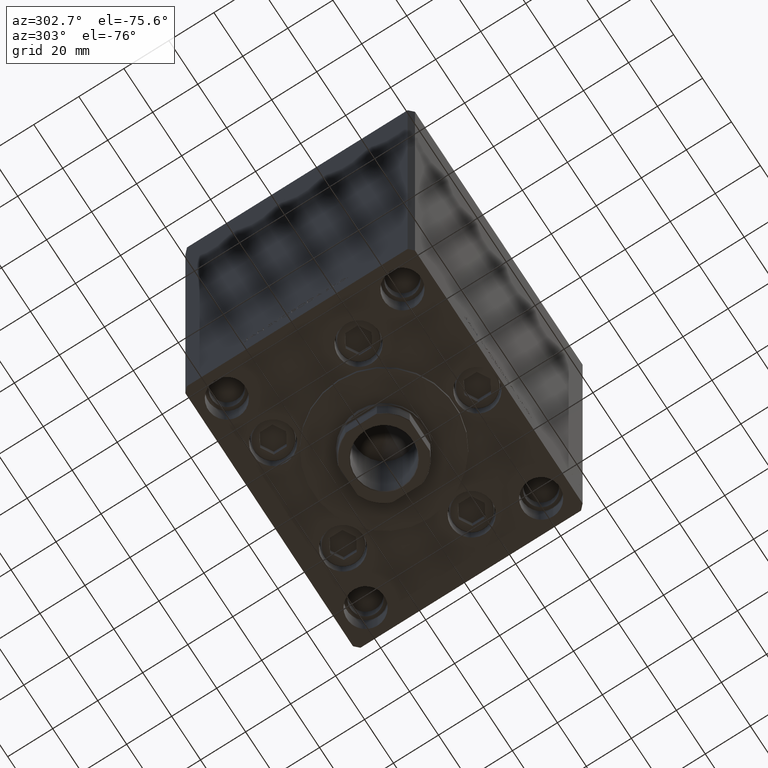
[diagram: clean part render]
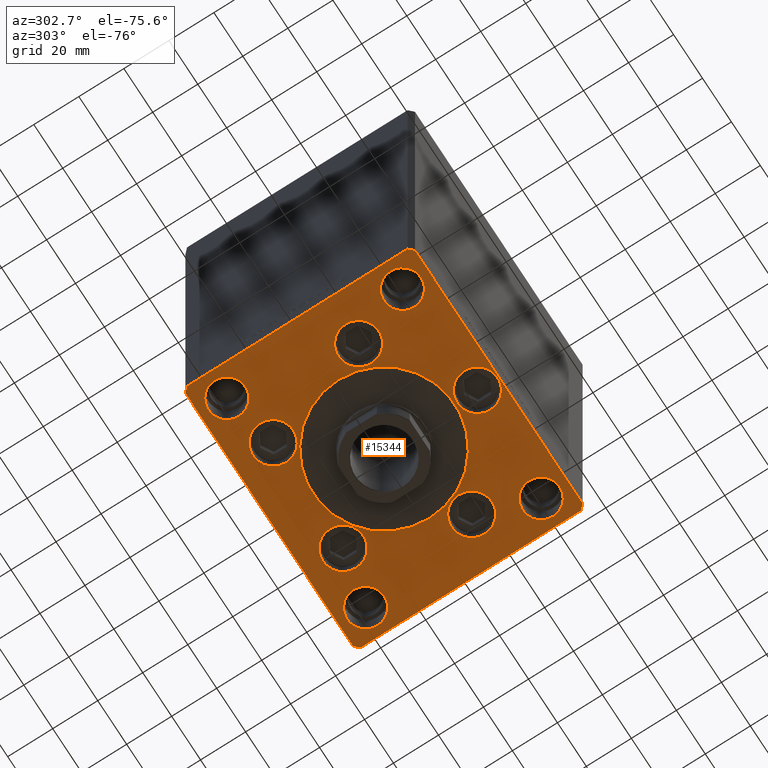
[diagram: same view with one face highlighted and labeled with its STEP entity id]
A machine part, auxiliary view. The second image highlights one B-rep face of the part: STEP entity #15344.
In plain terms, the highlighted planar face has unit normal (0, 0, -1).
Its self-contained STEP definition (entity closure, byte-faithful):
#146 = DIRECTION ( 'NONE',  ( 0.000000000000000000, 0.000000000000000000, 1.000000000000000000 ) ) ;
#362 = AXIS2_PLACEMENT_3D ( 'NONE', #9922, #32775, #3177 ) ;
#372 = CARTESIAN_POINT ( 'NONE',  ( 58.00000000000000000, 51.00000000000000711, 0.000000000000000000 ) ) ;
#555 = VERTEX_POINT ( 'NONE', #31207 ) ;
#558 = DIRECTION ( 'NONE',  ( 0.7071067811865474617, -0.7071067811865474617, 0.000000000000000000 ) ) ;
#609 = EDGE_LOOP ( 'NONE', ( #5217, #40848, #5569, #21369, #32803, #37626, #30897, #43867 ) ) ;
#1147 = CIRCLE ( 'NONE', #362, 9.000000000000000000 ) ;
#1271 = AXIS2_PLACEMENT_3D ( 'NONE', #23043, #26532, #38190 ) ;
#1336 = CARTESIAN_POINT ( 'NONE',  ( -60.00000000000000000, 49.00000000000000000, 0.000000000000000000 ) ) ;
#2244 = CARTESIAN_POINT ( 'NONE',  ( 60.00000000000001421, 49.00000000000002842, 0.000000000000000000 ) ) ;
#2248 = CARTESIAN_POINT ( 'NONE',  ( 24.19288941894913592, 33.71874999999998579, 0.000000000000000000 ) ) ;
#2297 = CARTESIAN_POINT ( 'NONE',  ( 56.24999999999999289, 39.00000000000000000, 0.000000000000000000 ) ) ;
#2342 = ORIENTED_EDGE ( 'NONE', *, *, #48947, .F. ) ;
#2444 = AXIS2_PLACEMENT_3D ( 'NONE', #2248, #21880, #18150 ) ;
#2614 = CIRCLE ( 'NONE', #39934, 8.249999999999992895 ) ;
#2862 = ORIENTED_EDGE ( 'NONE', *, *, #21265, .F. ) ;
#3177 = DIRECTION ( 'NONE',  ( 1.000000000000000000, 0.000000000000000000, 0.000000000000000000 ) ) ;
#3457 = VERTEX_POINT ( 'NONE', #14523 ) ;
#3471 = FACE_OUTER_BOUND ( 'NONE', #609, .T. ) ;
#3741 = DIRECTION ( 'NONE',  ( 0.000000000000000000, 0.000000000000000000, 1.000000000000000000 ) ) ;
#3934 = DIRECTION ( 'NONE',  ( 0.000000000000000000, 0.000000000000000000, 1.000000000000000000 ) ) ;
#3970 = FACE_BOUND ( 'NONE', #34110, .T. ) ;
#4025 = CARTESIAN_POINT ( 'NONE',  ( 39.12657522565563539, -13.83333333333332860, 0.000000000000000000 ) ) ;
#4414 = LINE ( 'NONE', #46408, #30144 ) ;
#4479 = CIRCLE ( 'NONE', #1271, 8.249999999999992895 ) ;
#5082 = EDGE_CURVE ( 'NONE', #43171, #555, #4414, .T. ) ;
#5217 = ORIENTED_EDGE ( 'NONE', *, *, #35470, .T. ) ;
#5569 = ORIENTED_EDGE ( 'NONE', *, *, #5758, .T. ) ;
#5758 = EDGE_CURVE ( 'NONE', #555, #22989, #15992, .T. ) ;
#5885 = VECTOR ( 'NONE', #46820, 1000.000000000000000 ) ;
#6061 = VERTEX_POINT ( 'NONE', #16851 ) ;
#6196 = EDGE_CURVE ( 'NONE', #17822, #37264, #34941, .T. ) ;
#6309 = DIRECTION ( 'NONE',  ( 1.000000000000000000, 0.000000000000000000, 0.000000000000000000 ) ) ;
#6341 = CARTESIAN_POINT ( 'NONE',  ( -48.00000000000000000, -39.00000000000001421, 0.000000000000000000 ) ) ;
#6381 = EDGE_LOOP ( 'NONE', ( #19022, #29788 ) ) ;
#6696 = CIRCLE ( 'NONE', #15425, 8.249999999999992895 ) ;
#7118 = EDGE_CURVE ( 'NONE', #24486, #8840, #7197, .T. ) ;
#7197 = CIRCLE ( 'NONE', #38165, 9.000000000000000000 ) ;
#7218 = FACE_BOUND ( 'NONE', #6381, .T. ) ;
#7277 = DIRECTION ( 'NONE',  ( 0.000000000000000000, 0.000000000000000000, 1.000000000000000000 ) ) ;
#7301 = CARTESIAN_POINT ( 'NONE',  ( 60.00000000000001421, -48.99999999999992895, 0.000000000000000000 ) ) ;
#7705 = ORIENTED_EDGE ( 'NONE', *, *, #28835, .F. ) ;
#7764 = EDGE_CURVE ( 'NONE', #33562, #3457, #32595, .T. ) ;
#7885 = DIRECTION ( 'NONE',  ( 1.000000000000000000, 0.000000000000000000, 0.000000000000000000 ) ) ;
#8044 = ORIENTED_EDGE ( 'NONE', *, *, #21135, .F. ) ;
#8183 = CARTESIAN_POINT ( 'NONE',  ( -39.12657522565563539, -13.83333333333332860, 0.000000000000000000 ) ) ;
#8242 = ORIENTED_EDGE ( 'NONE', *, *, #44125, .F. ) ;
#8301 = EDGE_CURVE ( 'NONE', #3457, #33562, #27085, .T. ) ;
#8353 = DIRECTION ( 'NONE',  ( 1.000000000000000000, 0.000000000000000000, 0.000000000000000000 ) ) ;
#8462 = DIRECTION ( 'NONE',  ( 1.000000000000000000, 0.000000000000000000, 0.000000000000000000 ) ) ;
#8819 = VERTEX_POINT ( 'NONE', #41983 ) ;
#8833 = CARTESIAN_POINT ( 'NONE',  ( -58.00000000000000711, -51.00000000000002842, 0.000000000000000000 ) ) ;
#8840 = VERTEX_POINT ( 'NONE', #19377 ) ;
#8930 = EDGE_LOOP ( 'NONE', ( #35722, #16639 ) ) ;
#8931 = DIRECTION ( 'NONE',  ( 1.000000000000000000, 0.000000000000000000, 0.000000000000000000 ) ) ;
#8970 = VERTEX_POINT ( 'NONE', #39470 ) ;
#9293 = DIRECTION ( 'NONE',  ( 0.000000000000000000, 0.000000000000000000, 1.000000000000000000 ) ) ;
#9371 = VERTEX_POINT ( 'NONE', #44842 ) ;
#9577 = LINE ( 'NONE', #13550, #32433 ) ;
#9601 = EDGE_CURVE ( 'NONE', #39922, #11554, #35038, .T. ) ;
#9922 = CARTESIAN_POINT ( 'NONE',  ( 0.000000000000000000, -41.50000000000000000, 0.000000000000000000 ) ) ;
#10938 = FACE_BOUND ( 'NONE', #44090, .T. ) ;
#11147 = VERTEX_POINT ( 'NONE', #29878 ) ;
#11184 = PLANE ( 'NONE',  #24119 ) ;
#11459 = EDGE_LOOP ( 'NONE', ( #44076, #37766 ) ) ;
#11554 = VERTEX_POINT ( 'NONE', #12399 ) ;
#11600 = DIRECTION ( 'NONE',  ( 0.000000000000000000, 0.000000000000000000, 1.000000000000000000 ) ) ;
#12399 = CARTESIAN_POINT ( 'NONE',  ( 31.50000000000000000, -3.081256486593065689E-15, 0.000000000000000000 ) ) ;
#12560 = CARTESIAN_POINT ( 'NONE',  ( -39.75000000000000711, -39.00000000000001421, 0.000000000000000000 ) ) ;
#12615 = EDGE_CURVE ( 'NONE', #22661, #9371, #2614, .T. ) ;
#12673 = CARTESIAN_POINT ( 'NONE',  ( 48.00000000000000000, -39.00000000000001421, 0.000000000000000000 ) ) ;
#12981 = CARTESIAN_POINT ( 'NONE',  ( -48.12657522565563539, -13.83333333333332682, 0.000000000000000000 ) ) ;
#13386 = CIRCLE ( 'NONE', #37986, 9.000000000000000000 ) ;
#13410 = DIRECTION ( 'NONE',  ( 0.000000000000000000, 0.000000000000000000, 1.000000000000000000 ) ) ;
#13550 = CARTESIAN_POINT ( 'NONE',  ( -57.99999999999998579, 50.99999999999997868, 0.000000000000000000 ) ) ;
#13730 = VERTEX_POINT ( 'NONE', #43020 ) ;
#14065 = CIRCLE ( 'NONE', #37067, 8.249999999999992895 ) ;
#14523 = CARTESIAN_POINT ( 'NONE',  ( 33.19288941894913592, 33.71874999999998579, 0.000000000000000000 ) ) ;
#14653 = ORIENTED_EDGE ( 'NONE', *, *, #23253, .F. ) ;
#14814 = CIRCLE ( 'NONE', #42582, 8.249999999999992895 ) ;
#14929 = DIRECTION ( 'NONE',  ( -0.000000000000000000, 0.000000000000000000, 1.000000000000000000 ) ) ;
#14970 = CARTESIAN_POINT ( 'NONE',  ( 30.12657522565563539, -13.83333333333332682, 0.000000000000000000 ) ) ;
#15173 = FACE_BOUND ( 'NONE', #8930, .T. ) ;
#15199 = CARTESIAN_POINT ( 'NONE',  ( 0.000000000000000000, -6.938893903907228378E-15, 0.000000000000000000 ) ) ;
#15344 = ADVANCED_FACE ( 'NONE', ( #10938, #30566, #22873, #48953, #41250, #15173, #3970, #7218, #30074, #22383, #3471 ), #11184, .T. ) ;
#15425 = AXIS2_PLACEMENT_3D ( 'NONE', #24749, #20027, #24248 ) ;
#15727 = DIRECTION ( 'NONE',  ( 1.000000000000000000, 0.000000000000000000, 0.000000000000000000 ) ) ;
#15816 = EDGE_CURVE ( 'NONE', #8819, #26010, #20239, .T. ) ;
#15889 = DIRECTION ( 'NONE',  ( 1.000000000000000000, 0.000000000000000000, 0.000000000000000000 ) ) ;
#15992 = LINE ( 'NONE', #35339, #34115 ) ;
#16242 = AXIS2_PLACEMENT_3D ( 'NONE', #42725, #13410, #8931 ) ;
#16389 = VERTEX_POINT ( 'NONE', #21169 ) ;
#16639 = ORIENTED_EDGE ( 'NONE', *, *, #48517, .F. ) ;
#16713 = CARTESIAN_POINT ( 'NONE',  ( 58.00000000000000000, 51.00000000000000711, 0.000000000000000000 ) ) ;
#16851 = CARTESIAN_POINT ( 'NONE',  ( 39.75000000000000711, -39.00000000000001421, 0.000000000000000000 ) ) ;
#17039 = DIRECTION ( 'NONE',  ( 0.000000000000000000, 0.000000000000000000, 1.000000000000000000 ) ) ;
#17231 = DIRECTION ( 'NONE',  ( 0.000000000000000000, 0.000000000000000000, 1.000000000000000000 ) ) ;
#17287 = DIRECTION ( 'NONE',  ( -0.7071067811865536790, -0.7071067811865414665, 0.000000000000000000 ) ) ;
#17367 = CARTESIAN_POINT ( 'NONE',  ( -60.00000000000000000, -49.00000000000004263, 0.000000000000000000 ) ) ;
#17822 = VERTEX_POINT ( 'NONE', #18309 ) ;
#18150 = DIRECTION ( 'NONE',  ( 1.000000000000000000, 0.000000000000000000, 0.000000000000000000 ) ) ;
#18309 = CARTESIAN_POINT ( 'NONE',  ( -15.19288941894913592, 33.71874999999998579, 0.000000000000000000 ) ) ;
#18667 = DIRECTION ( 'NONE',  ( 1.000000000000000000, 0.000000000000000000, 0.000000000000000000 ) ) ;
#18686 = CARTESIAN_POINT ( 'NONE',  ( 15.19288941894913236, 33.71874999999998579, 0.000000000000000000 ) ) ;
#18787 = VERTEX_POINT ( 'NONE', #12981 ) ;
#18807 = VECTOR ( 'NONE', #558, 1000.000000000000114 ) ;
#19016 = AXIS2_PLACEMENT_3D ( 'NONE', #27808, #32262, #24076 ) ;
#19022 = ORIENTED_EDGE ( 'NONE', *, *, #26171, .F. ) ;
#19377 = CARTESIAN_POINT ( 'NONE',  ( -9.000000000000000000, -41.50000000000000000, 0.000000000000000000 ) ) ;
#19451 = EDGE_CURVE ( 'NONE', #16389, #25731, #6696, .T. ) ;
#20027 = DIRECTION ( 'NONE',  ( 0.000000000000000000, 0.000000000000000000, 1.000000000000000000 ) ) ;
#20239 = LINE ( 'NONE', #1336, #5885 ) ;
#20459 = AXIS2_PLACEMENT_3D ( 'NONE', #46243, #35061, #31823 ) ;
#20616 = VECTOR ( 'NONE', #32696, 1000.000000000000000 ) ;
#20961 = CARTESIAN_POINT ( 'NONE',  ( -39.12657522565563539, -13.83333333333332860, 0.000000000000000000 ) ) ;
#21135 = EDGE_CURVE ( 'NONE', #11147, #42077, #48751, .T. ) ;
#21169 = CARTESIAN_POINT ( 'NONE',  ( 39.75000000000000711, 39.00000000000000000, 0.000000000000000000 ) ) ;
#21265 = EDGE_CURVE ( 'NONE', #8840, #24486, #1147, .T. ) ;
#21369 = ORIENTED_EDGE ( 'NONE', *, *, #46327, .T. ) ;
#21694 = VERTEX_POINT ( 'NONE', #372 ) ;
#21842 = EDGE_LOOP ( 'NONE', ( #24807, #8242 ) ) ;
#21880 = DIRECTION ( 'NONE',  ( 0.000000000000000000, 0.000000000000000000, 1.000000000000000000 ) ) ;
#22383 = FACE_BOUND ( 'NONE', #49168, .T. ) ;
#22470 = EDGE_LOOP ( 'NONE', ( #44718, #31667 ) ) ;
#22661 = VERTEX_POINT ( 'NONE', #12560 ) ;
#22873 = FACE_BOUND ( 'NONE', #11459, .T. ) ;
#22989 = VERTEX_POINT ( 'NONE', #7301 ) ;
#23028 = ORIENTED_EDGE ( 'NONE', *, *, #7118, .F. ) ;
#23043 = CARTESIAN_POINT ( 'NONE',  ( -48.00000000000000000, 39.00000000000000711, 0.000000000000000000 ) ) ;
#23193 = LINE ( 'NONE', #16713, #37841 ) ;
#23253 = EDGE_CURVE ( 'NONE', #11554, #39922, #31375, .T. ) ;
#23680 = DIRECTION ( 'NONE',  ( -1.000000000000000000, -2.392722035830078972E-16, 0.000000000000000000 ) ) ;
#23768 = CARTESIAN_POINT ( 'NONE',  ( 0.000000000000000000, -41.50000000000000000, 0.000000000000000000 ) ) ;
#24076 = DIRECTION ( 'NONE',  ( 1.000000000000000000, 0.000000000000000000, 0.000000000000000000 ) ) ;
#24119 = AXIS2_PLACEMENT_3D ( 'NONE', #26864, #14929, #38263 ) ;
#24165 = VERTEX_POINT ( 'NONE', #34244 ) ;
#24205 = DIRECTION ( 'NONE',  ( 1.000000000000000000, 0.000000000000000000, 0.000000000000000000 ) ) ;
#24248 = DIRECTION ( 'NONE',  ( 1.000000000000000000, 0.000000000000000000, 0.000000000000000000 ) ) ;
#24486 = VERTEX_POINT ( 'NONE', #30464 ) ;
#24738 = AXIS2_PLACEMENT_3D ( 'NONE', #41245, #43575, #6309 ) ;
#24749 = CARTESIAN_POINT ( 'NONE',  ( 48.00000000000000000, 39.00000000000000000, 0.000000000000000000 ) ) ;
#24807 = ORIENTED_EDGE ( 'NONE', *, *, #6196, .F. ) ;
#25183 = DIRECTION ( 'NONE',  ( 1.000000000000000000, 0.000000000000000000, 0.000000000000000000 ) ) ;
#25457 = EDGE_CURVE ( 'NONE', #9371, #22661, #14814, .T. ) ;
#25506 = CARTESIAN_POINT ( 'NONE',  ( -30.12657522565563539, -13.83333333333332860, 0.000000000000000000 ) ) ;
#25731 = VERTEX_POINT ( 'NONE', #2297 ) ;
#25741 = DIRECTION ( 'NONE',  ( 1.000000000000000000, 0.000000000000000000, 0.000000000000000000 ) ) ;
#26010 = VERTEX_POINT ( 'NONE', #17367 ) ;
#26171 = EDGE_CURVE ( 'NONE', #13730, #26604, #4479, .T. ) ;
#26233 = AXIS2_PLACEMENT_3D ( 'NONE', #8183, #41465, #15889 ) ;
#26532 = DIRECTION ( 'NONE',  ( 0.000000000000000000, 0.000000000000000000, 1.000000000000000000 ) ) ;
#26604 = VERTEX_POINT ( 'NONE', #32142 ) ;
#26864 = CARTESIAN_POINT ( 'NONE',  ( 0.000000000000000000, 0.000000000000000000, 0.000000000000000000 ) ) ;
#26935 = LINE ( 'NONE', #42315, #18807 ) ;
#27085 = CIRCLE ( 'NONE', #35778, 9.000000000000001776 ) ;
#27808 = CARTESIAN_POINT ( 'NONE',  ( -48.00000000000000000, 39.00000000000000711, 0.000000000000000000 ) ) ;
#28211 = CARTESIAN_POINT ( 'NONE',  ( -31.50000000000000000, -6.938893903907228378E-15, 0.000000000000000000 ) ) ;
#28725 = DIRECTION ( 'NONE',  ( 1.000000000000000000, 0.000000000000000000, 0.000000000000000000 ) ) ;
#28835 = EDGE_CURVE ( 'NONE', #6061, #36690, #29191, .T. ) ;
#29051 = ORIENTED_EDGE ( 'NONE', *, *, #35884, .F. ) ;
#29185 = CIRCLE ( 'NONE', #45837, 9.000000000000001776 ) ;
#29191 = CIRCLE ( 'NONE', #20459, 8.249999999999992895 ) ;
#29788 = ORIENTED_EDGE ( 'NONE', *, *, #45975, .F. ) ;
#29878 = CARTESIAN_POINT ( 'NONE',  ( 48.12657522565563539, -13.83333333333332860, 0.000000000000000000 ) ) ;
#30074 = FACE_BOUND ( 'NONE', #22470, .T. ) ;
#30144 = VECTOR ( 'NONE', #37975, 1000.000000000000000 ) ;
#30464 = CARTESIAN_POINT ( 'NONE',  ( 9.000000000000000000, -41.50000000000000000, 0.000000000000000000 ) ) ;
#30484 = DIRECTION ( 'NONE',  ( 1.000000000000000000, 0.000000000000000000, 0.000000000000000000 ) ) ;
#30566 = FACE_BOUND ( 'NONE', #21842, .T. ) ;
#30803 = ORIENTED_EDGE ( 'NONE', *, *, #9601, .F. ) ;
#30897 = ORIENTED_EDGE ( 'NONE', *, *, #43228, .T. ) ;
#31140 = DIRECTION ( 'NONE',  ( 0.7071067811865474617, 0.7071067811865474617, 0.000000000000000000 ) ) ;
#31207 = CARTESIAN_POINT ( 'NONE',  ( 58.00000000000001421, -50.99999999999992184, 0.000000000000000000 ) ) ;
#31375 = CIRCLE ( 'NONE', #36942, 31.50000000000000000 ) ;
#31667 = ORIENTED_EDGE ( 'NONE', *, *, #25457, .F. ) ;
#31779 = AXIS2_PLACEMENT_3D ( 'NONE', #41903, #146, #8353 ) ;
#31823 = DIRECTION ( 'NONE',  ( 1.000000000000000000, 0.000000000000000000, 0.000000000000000000 ) ) ;
#32142 = CARTESIAN_POINT ( 'NONE',  ( -56.24999999999999289, 39.00000000000000711, 0.000000000000000000 ) ) ;
#32262 = DIRECTION ( 'NONE',  ( 0.000000000000000000, 0.000000000000000000, 1.000000000000000000 ) ) ;
#32433 = VECTOR ( 'NONE', #17287, 1000.000000000000000 ) ;
#32595 = CIRCLE ( 'NONE', #2444, 9.000000000000001776 ) ;
#32630 = EDGE_CURVE ( 'NONE', #37254, #18787, #29185, .T. ) ;
#32691 = CARTESIAN_POINT ( 'NONE',  ( 48.00000000000000000, 39.00000000000000000, 0.000000000000000000 ) ) ;
#32696 = DIRECTION ( 'NONE',  ( 0.000000000000000000, 1.000000000000000000, 0.000000000000000000 ) ) ;
#32775 = DIRECTION ( 'NONE',  ( 0.000000000000000000, 0.000000000000000000, 1.000000000000000000 ) ) ;
#32803 = ORIENTED_EDGE ( 'NONE', *, *, #44602, .T. ) ;
#32802 = DIRECTION ( 'NONE',  ( -0.7071067811865536790, 0.7071067811865414665, 0.000000000000000000 ) ) ;
#33562 = VERTEX_POINT ( 'NONE', #18686 ) ;
#34072 = CARTESIAN_POINT ( 'NONE',  ( 56.24999999999999289, -39.00000000000001421, 0.000000000000000000 ) ) ;
#34110 = EDGE_LOOP ( 'NONE', ( #2342, #45813 ) ) ;
#34115 = VECTOR ( 'NONE', #31140, 1000.000000000000114 ) ;
#34244 = CARTESIAN_POINT ( 'NONE',  ( 60.00000000000001421, 49.00000000000002842, 0.000000000000000000 ) ) ;
#34258 = CARTESIAN_POINT ( 'NONE',  ( -24.19288941894913592, 33.71874999999998579, 0.000000000000000000 ) ) ;
#34501 = DIRECTION ( 'NONE',  ( 1.000000000000000000, 0.000000000000000000, 0.000000000000000000 ) ) ;
#34599 = EDGE_LOOP ( 'NONE', ( #23028, #2862 ) ) ;
#34806 = DIRECTION ( 'NONE',  ( 0.000000000000000000, 0.000000000000000000, 1.000000000000000000 ) ) ;
#34941 = CIRCLE ( 'NONE', #31779, 9.000000000000000000 ) ;
#35038 = CIRCLE ( 'NONE', #24738, 31.50000000000000000 ) ;
#35061 = DIRECTION ( 'NONE',  ( 0.000000000000000000, 0.000000000000000000, 1.000000000000000000 ) ) ;
#35339 = CARTESIAN_POINT ( 'NONE',  ( 58.00000000000001421, -50.99999999999992184, 0.000000000000000000 ) ) ;
#35470 = EDGE_CURVE ( 'NONE', #26010, #43171, #26935, .T. ) ;
#35483 = EDGE_CURVE ( 'NONE', #21694, #8970, #23193, .T. ) ;
#35722 = ORIENTED_EDGE ( 'NONE', *, *, #32630, .F. ) ;
#35778 = AXIS2_PLACEMENT_3D ( 'NONE', #37204, #11600, #7885 ) ;
#35781 = CIRCLE ( 'NONE', #38941, 8.249999999999992895 ) ;
#35884 = EDGE_CURVE ( 'NONE', #36690, #6061, #14065, .T. ) ;
#36540 = CIRCLE ( 'NONE', #26233, 9.000000000000001776 ) ;
#36667 = LINE ( 'NONE', #48088, #20616 ) ;
#36690 = VERTEX_POINT ( 'NONE', #34072 ) ;
#36942 = AXIS2_PLACEMENT_3D ( 'NONE', #15199, #3741, #18667 ) ;
#37067 = AXIS2_PLACEMENT_3D ( 'NONE', #12673, #34806, #8462 ) ;
#37204 = CARTESIAN_POINT ( 'NONE',  ( 24.19288941894913592, 33.71874999999998579, 0.000000000000000000 ) ) ;
#37254 = VERTEX_POINT ( 'NONE', #25506 ) ;
#37264 = VERTEX_POINT ( 'NONE', #40640 ) ;
#37626 = ORIENTED_EDGE ( 'NONE', *, *, #35483, .T. ) ;
#37766 = ORIENTED_EDGE ( 'NONE', *, *, #7764, .F. ) ;
#37841 = VECTOR ( 'NONE', #23680, 1000.000000000000000 ) ;
#37932 = DIRECTION ( 'NONE',  ( 0.000000000000000000, 0.000000000000000000, 1.000000000000000000 ) ) ;
#37975 = DIRECTION ( 'NONE',  ( 1.000000000000000000, 9.570888143320313916E-16, 0.000000000000000000 ) ) ;
#37986 = AXIS2_PLACEMENT_3D ( 'NONE', #34258, #3934, #34501 ) ;
#38092 = CIRCLE ( 'NONE', #43632, 9.000000000000001776 ) ;
#38165 = AXIS2_PLACEMENT_3D ( 'NONE', #23768, #37932, #30484 ) ;
#38190 = DIRECTION ( 'NONE',  ( 1.000000000000000000, 0.000000000000000000, 0.000000000000000000 ) ) ;
#38263 = DIRECTION ( 'NONE',  ( 1.000000000000000000, 0.000000000000000000, 0.000000000000000000 ) ) ;
#38941 = AXIS2_PLACEMENT_3D ( 'NONE', #32691, #40634, #25741 ) ;
#39347 = CARTESIAN_POINT ( 'NONE',  ( -48.00000000000000000, -39.00000000000001421, 0.000000000000000000 ) ) ;
#39470 = CARTESIAN_POINT ( 'NONE',  ( -57.99999999999998579, 50.99999999999997868, 0.000000000000000000 ) ) ;
#39922 = VERTEX_POINT ( 'NONE', #28211 ) ;
#39934 = AXIS2_PLACEMENT_3D ( 'NONE', #39347, #9293, #24205 ) ;
#40634 = DIRECTION ( 'NONE',  ( 0.000000000000000000, 0.000000000000000000, 1.000000000000000000 ) ) ;
#40640 = CARTESIAN_POINT ( 'NONE',  ( -33.19288941894913592, 33.71874999999998579, 0.000000000000000000 ) ) ;
#40848 = ORIENTED_EDGE ( 'NONE', *, *, #5082, .T. ) ;
#41245 = CARTESIAN_POINT ( 'NONE',  ( 0.000000000000000000, -6.938893903907228378E-15, 0.000000000000000000 ) ) ;
#41250 = FACE_BOUND ( 'NONE', #34599, .T. ) ;
#41465 = DIRECTION ( 'NONE',  ( 0.000000000000000000, 0.000000000000000000, 1.000000000000000000 ) ) ;
#41903 = CARTESIAN_POINT ( 'NONE',  ( -24.19288941894913592, 33.71874999999998579, 0.000000000000000000 ) ) ;
#41983 = CARTESIAN_POINT ( 'NONE',  ( -60.00000000000000000, 49.00000000000000000, 0.000000000000000000 ) ) ;
#42077 = VERTEX_POINT ( 'NONE', #14970 ) ;
#42315 = CARTESIAN_POINT ( 'NONE',  ( -60.00000000000000000, -49.00000000000004263, 0.000000000000000000 ) ) ;
#42582 = AXIS2_PLACEMENT_3D ( 'NONE', #6341, #17039, #28725 ) ;
#42725 = CARTESIAN_POINT ( 'NONE',  ( 39.12657522565563539, -13.83333333333332860, 0.000000000000000000 ) ) ;
#43020 = CARTESIAN_POINT ( 'NONE',  ( -39.75000000000000711, 39.00000000000000711, 0.000000000000000000 ) ) ;
#43171 = VERTEX_POINT ( 'NONE', #8833 ) ;
#43228 = EDGE_CURVE ( 'NONE', #8970, #8819, #9577, .T. ) ;
#43575 = DIRECTION ( 'NONE',  ( 0.000000000000000000, 0.000000000000000000, 1.000000000000000000 ) ) ;
#43632 = AXIS2_PLACEMENT_3D ( 'NONE', #4025, #7277, #15727 ) ;
#43867 = ORIENTED_EDGE ( 'NONE', *, *, #15816, .T. ) ;
#43980 = LINE ( 'NONE', #2244, #45145 ) ;
#44076 = ORIENTED_EDGE ( 'NONE', *, *, #8301, .F. ) ;
#44090 = EDGE_LOOP ( 'NONE', ( #30803, #14653 ) ) ;
#44125 = EDGE_CURVE ( 'NONE', #37264, #17822, #13386, .T. ) ;
#44602 = EDGE_CURVE ( 'NONE', #24165, #21694, #43980, .T. ) ;
#44718 = ORIENTED_EDGE ( 'NONE', *, *, #12615, .F. ) ;
#44842 = CARTESIAN_POINT ( 'NONE',  ( -56.24999999999999289, -39.00000000000001421, 0.000000000000000000 ) ) ;
#44896 = EDGE_LOOP ( 'NONE', ( #8044, #47578 ) ) ;
#45145 = VECTOR ( 'NONE', #32802, 1000.000000000000000 ) ;
#45174 = CIRCLE ( 'NONE', #19016, 8.249999999999992895 ) ;
#45813 = ORIENTED_EDGE ( 'NONE', *, *, #19451, .F. ) ;
#45837 = AXIS2_PLACEMENT_3D ( 'NONE', #20961, #17231, #25183 ) ;
#45975 = EDGE_CURVE ( 'NONE', #26604, #13730, #45174, .T. ) ;
#46243 = CARTESIAN_POINT ( 'NONE',  ( 48.00000000000000000, -39.00000000000001421, 0.000000000000000000 ) ) ;
#46327 = EDGE_CURVE ( 'NONE', #22989, #24165, #36667, .T. ) ;
#46408 = CARTESIAN_POINT ( 'NONE',  ( -58.00000000000000711, -51.00000000000002842, 0.000000000000000000 ) ) ;
#46820 = DIRECTION ( 'NONE',  ( 0.000000000000000000, -1.000000000000000000, 0.000000000000000000 ) ) ;
#47578 = ORIENTED_EDGE ( 'NONE', *, *, #47661, .F. ) ;
#47661 = EDGE_CURVE ( 'NONE', #42077, #11147, #38092, .T. ) ;
#48088 = CARTESIAN_POINT ( 'NONE',  ( 60.00000000000001421, -48.99999999999992895, 0.000000000000000000 ) ) ;
#48517 = EDGE_CURVE ( 'NONE', #18787, #37254, #36540, .T. ) ;
#48751 = CIRCLE ( 'NONE', #16242, 9.000000000000001776 ) ;
#48947 = EDGE_CURVE ( 'NONE', #25731, #16389, #35781, .T. ) ;
#48953 = FACE_BOUND ( 'NONE', #44896, .T. ) ;
#49168 = EDGE_LOOP ( 'NONE', ( #29051, #7705 ) ) ;